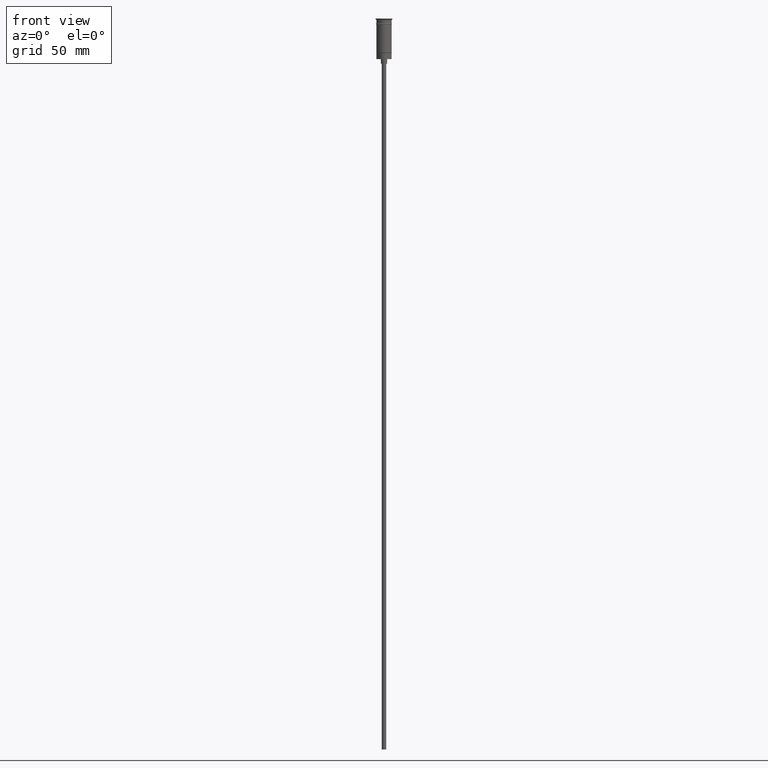
[diagram: clean part render]
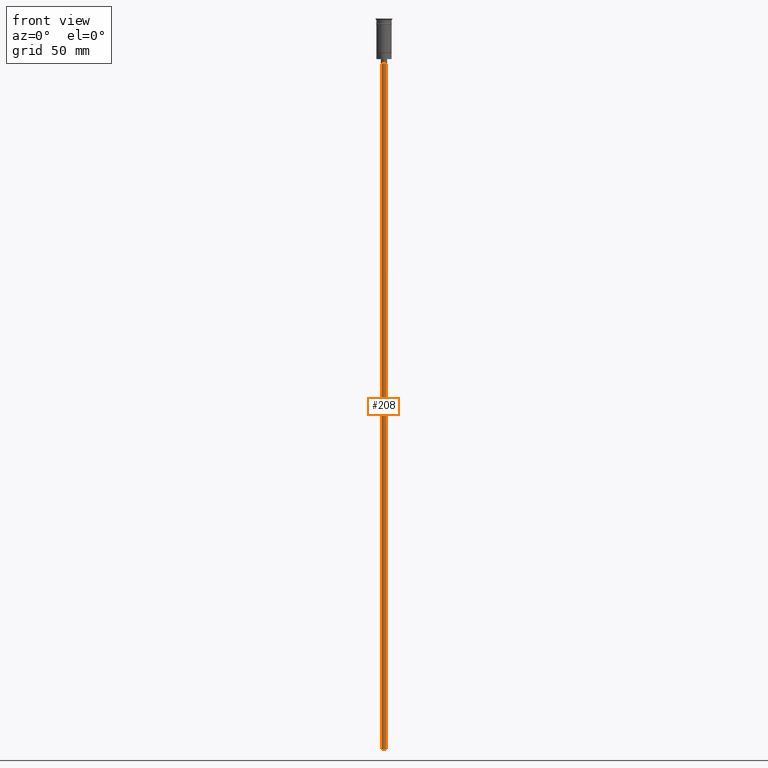
[diagram: same view with one face highlighted and labeled with its STEP entity id]
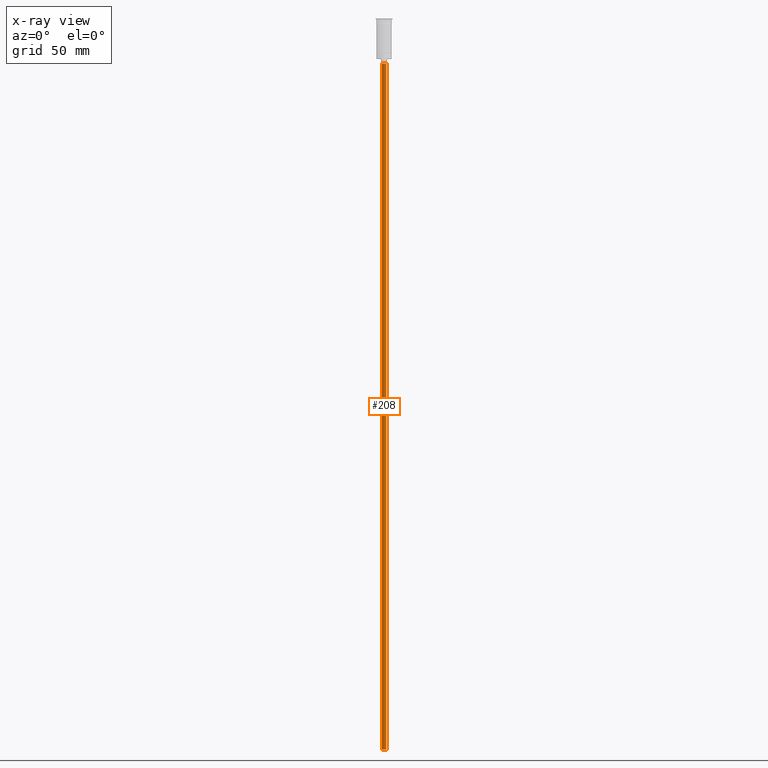
[diagram: x-ray of the same camera — body ghosted, the highlighted face saturated]
A machine part, front view. The second image highlights one B-rep face of the part: STEP entity #208.
The next image is the same camera in x-ray: the body ghosted, the highlighted face saturated — about 0% of this face is hidden behind the body in this view.
In plain terms, the highlighted cylindrical surface (edge-blend (fillet) strip) has radius 1.5 mm, axis along (-0, -0, 1).
Its self-contained STEP definition (entity closure, byte-faithful):
#128 = CARTESIAN_POINT ( 'NONE',  ( 0.000000000000000000, 0.000000000000000000, -29.50000000000000000 ) ) ;
#147 = DIRECTION ( 'NONE',  ( -0.000000000000000000, -0.000000000000000000, 1.000000000000000000 ) ) ;
#178 = LINE ( 'NONE', #675, #370 ) ;
#204 = ORIENTED_EDGE ( 'NONE', *, *, #1415, .F. ) ;
#208 = ADVANCED_FACE ( 'NONE', ( #1466 ), #1253, .T. ) ;
#255 = DIRECTION ( 'NONE',  ( 0.000000000000000000, 0.000000000000000000, -1.000000000000000000 ) ) ;
#337 = VECTOR ( 'NONE', #994, 1000.000000000000000 ) ;
#370 = VECTOR ( 'NONE', #147, 1000.000000000000000 ) ;
#503 = DIRECTION ( 'NONE',  ( -1.000000000000000000, 0.000000000000000000, 0.000000000000000000 ) ) ;
#553 = CARTESIAN_POINT ( 'NONE',  ( 1.500000000000000222, 0.000000000000000000, -476.5000000000000568 ) ) ;
#577 = AXIS2_PLACEMENT_3D ( 'NONE', #757, #255, #503 ) ;
#593 = ORIENTED_EDGE ( 'NONE', *, *, #1198, .T. ) ;
#615 = CARTESIAN_POINT ( 'NONE',  ( 0.000000000000000000, 0.000000000000000000, -476.5000000000000568 ) ) ;
#626 = DIRECTION ( 'NONE',  ( -1.000000000000000000, 0.000000000000000000, 0.000000000000000000 ) ) ;
#649 = VERTEX_POINT ( 'NONE', #553 ) ;
#672 = VERTEX_POINT ( 'NONE', #1299 ) ;
#675 = CARTESIAN_POINT ( 'NONE',  ( -1.500000000000000222, 1.836970198721030181E-16, -476.5000000000000568 ) ) ;
#722 = CARTESIAN_POINT ( 'NONE',  ( 1.500000000000000222, 0.000000000000000000, -476.5000000000000568 ) ) ;
#757 = CARTESIAN_POINT ( 'NONE',  ( 0.000000000000000000, 0.000000000000000000, -476.5000000000000568 ) ) ;
#821 = AXIS2_PLACEMENT_3D ( 'NONE', #615, #1115, #1009 ) ;
#964 = EDGE_CURVE ( 'NONE', #672, #1409, #999, .T. ) ;
#994 = DIRECTION ( 'NONE',  ( -0.000000000000000000, -0.000000000000000000, 1.000000000000000000 ) ) ;
#998 = CARTESIAN_POINT ( 'NONE',  ( -1.500000000000000222, 1.836970198721030181E-16, -476.5000000000000568 ) ) ;
#999 = CIRCLE ( 'NONE', #1556, 1.500000000000000222 ) ;
#1009 = DIRECTION ( 'NONE',  ( 1.000000000000000000, 0.000000000000000000, 0.000000000000000000 ) ) ;
#1074 = EDGE_CURVE ( 'NONE', #1555, #1409, #178, .T. ) ;
#1115 = DIRECTION ( 'NONE',  ( -0.000000000000000000, -0.000000000000000000, 1.000000000000000000 ) ) ;
#1151 = CARTESIAN_POINT ( 'NONE',  ( -1.500000000000000222, 1.836970198721030181E-16, -29.50000000000000000 ) ) ;
#1198 = EDGE_CURVE ( 'NONE', #649, #672, #1488, .T. ) ;
#1222 = ORIENTED_EDGE ( 'NONE', *, *, #1074, .F. ) ;
#1241 = ORIENTED_EDGE ( 'NONE', *, *, #964, .T. ) ;
#1253 = CYLINDRICAL_SURFACE ( 'NONE', #821, 1.500000000000000222 ) ;
#1288 = CIRCLE ( 'NONE', #577, 1.500000000000000222 ) ;
#1299 = CARTESIAN_POINT ( 'NONE',  ( 1.500000000000000222, 0.000000000000000000, -29.50000000000000000 ) ) ;
#1328 = EDGE_LOOP ( 'NONE', ( #1222, #204, #593, #1241 ) ) ;
#1350 = DIRECTION ( 'NONE',  ( 0.000000000000000000, 0.000000000000000000, -1.000000000000000000 ) ) ;
#1409 = VERTEX_POINT ( 'NONE', #1151 ) ;
#1415 = EDGE_CURVE ( 'NONE', #649, #1555, #1288, .T. ) ;
#1466 = FACE_OUTER_BOUND ( 'NONE', #1328, .T. ) ;
#1488 = LINE ( 'NONE', #722, #337 ) ;
#1555 = VERTEX_POINT ( 'NONE', #998 ) ;
#1556 = AXIS2_PLACEMENT_3D ( 'NONE', #128, #1350, #626 ) ;